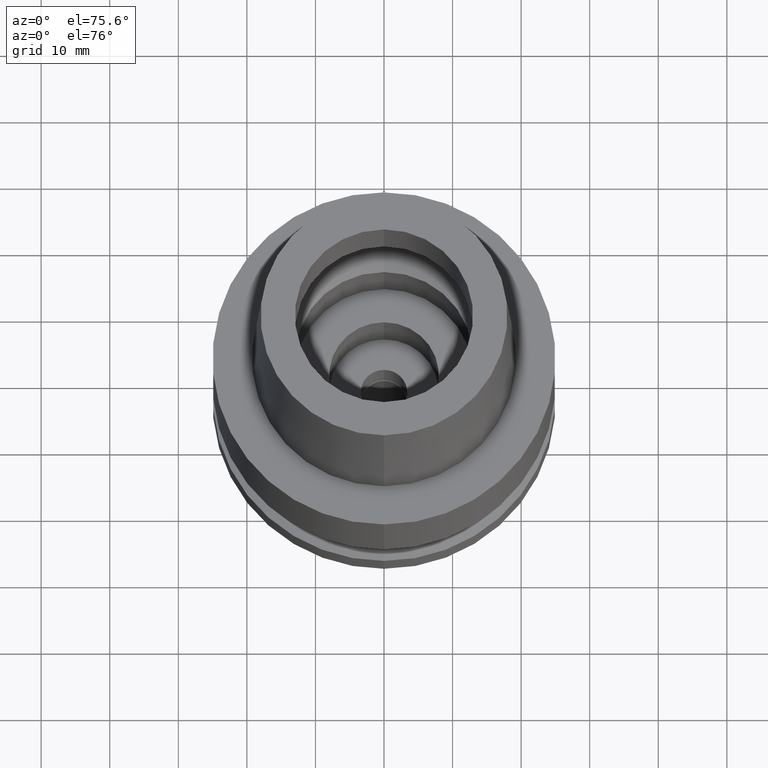
[diagram: clean part render]
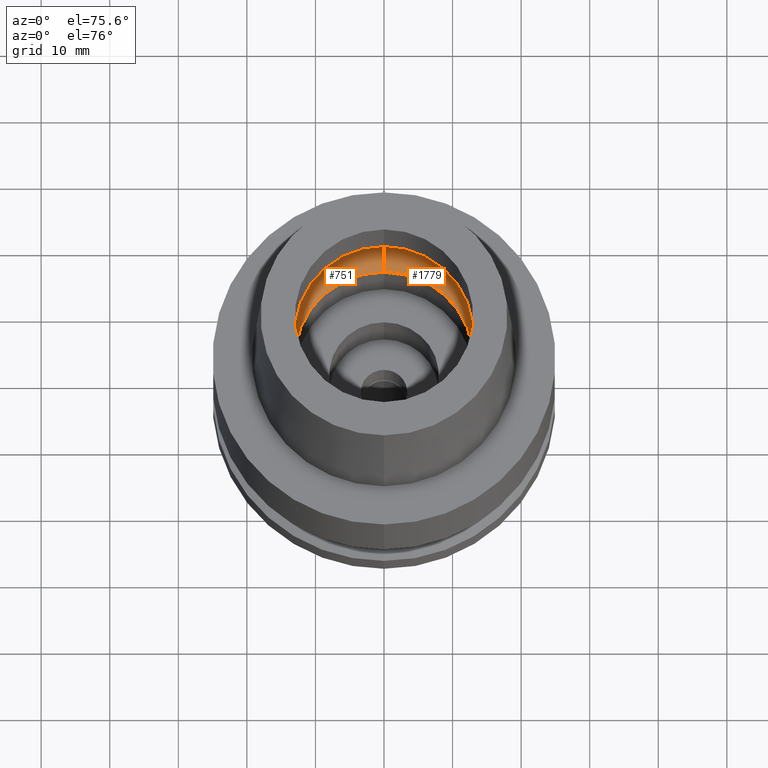
[diagram: same view with one multi-face feature highlighted, each face labeled with its STEP entity id]
A machine part, auxiliary view. The highlighted faces form ONE feature: a constant-radius fillet chain: 2 tangent blend faces with common blend radius 6 mm. The faces share edges in the B-rep.
Their STEP definitions:
[1] entity #751 (Torus):
#36 = CARTESIAN_POINT ( 'NONE',  ( 0.0000000000000000000, -16.00000000000000000, 5.245999999999999552 ) ) ;
#47 = DIRECTION ( 'NONE',  ( 0.0000000000000000000, 0.0000000000000000000, 1.000000000000000000 ) ) ;
#60 = DIRECTION ( 'NONE',  ( 0.0000000000000000000, -0.5000000000000169864, -0.8660254037844289376 ) ) ;
#87 = CARTESIAN_POINT ( 'NONE',  ( 0.0000000000000000000, -10.00000000000000000, 5.245999999999999552 ) ) ;
#114 = EDGE_LOOP ( 'NONE', ( #2272, #1970, #986, #553 ) ) ;
#196 = CIRCLE ( 'NONE', #805, 6.000000000000000000 ) ;
#271 = AXIS2_PLACEMENT_3D ( 'NONE', #2399, #1765, #1161 ) ;
#384 = VERTEX_POINT ( 'NONE', #2533 ) ;
#482 = AXIS2_PLACEMENT_3D ( 'NONE', #738, #2591, #1362 ) ;
#485 = CIRCLE ( 'NONE', #482, 6.000000000000000000 ) ;
#494 = EDGE_CURVE ( 'NONE', #795, #518, #1804, .T. ) ;
#518 = VERTEX_POINT ( 'NONE', #930 ) ;
#533 = EDGE_CURVE ( 'NONE', #932, #518, #485, .T. ) ;
#553 = ORIENTED_EDGE ( 'NONE', *, *, #533, .T. ) ;
#738 = CARTESIAN_POINT ( 'NONE',  ( 0.0000000000000000000, 10.00000000000000000, 5.245999999999999552 ) ) ;
#751 = ADVANCED_FACE ( 'NONE', ( #1314 ), #2656, .F. ) ;
#795 = VERTEX_POINT ( 'NONE', #36 ) ;
#805 = AXIS2_PLACEMENT_3D ( 'NONE', #87, #1759, #60 ) ;
#930 = CARTESIAN_POINT ( 'NONE',  ( 0.0000000000000000000, 16.00000000000000000, 5.245999999999999552 ) ) ;
#932 = VERTEX_POINT ( 'NONE', #987 ) ;
#986 = ORIENTED_EDGE ( 'NONE', *, *, #1185, .F. ) ;
#987 = CARTESIAN_POINT ( 'NONE',  ( 0.0000000000000000000, 13.00000000000000000, 0.04984757729336999899 ) ) ;
#1161 = DIRECTION ( 'NONE',  ( 0.0000000000000000000, -1.000000000000000000, 0.0000000000000000000 ) ) ;
#1185 = EDGE_CURVE ( 'NONE', #932, #384, #1370, .T. ) ;
#1314 = FACE_OUTER_BOUND ( 'NONE', #114, .T. ) ;
#1324 = CARTESIAN_POINT ( 'NONE',  ( 0.0000000000000000000, 0.0000000000000000000, 0.04984757729338000487 ) ) ;
#1362 = DIRECTION ( 'NONE',  ( 0.0000000000000000000, 0.5000000000000169864, -0.8660254037844289376 ) ) ;
#1370 = CIRCLE ( 'NONE', #1489, 13.00000000000000000 ) ;
#1489 = AXIS2_PLACEMENT_3D ( 'NONE', #1324, #2558, #2338 ) ;
#1759 = DIRECTION ( 'NONE',  ( -1.000000000000000000, 0.0000000000000000000, 0.0000000000000000000 ) ) ;
#1765 = DIRECTION ( 'NONE',  ( 0.0000000000000000000, 0.0000000000000000000, -1.000000000000000000 ) ) ;
#1804 = CIRCLE ( 'NONE', #271, 16.00000000000000000 ) ;
#1931 = AXIS2_PLACEMENT_3D ( 'NONE', #2145, #47, #2366 ) ;
#1970 = ORIENTED_EDGE ( 'NONE', *, *, #2187, .F. ) ;
#2145 = CARTESIAN_POINT ( 'NONE',  ( 0.0000000000000000000, 0.0000000000000000000, 5.245999999999999552 ) ) ;
#2187 = EDGE_CURVE ( 'NONE', #384, #795, #196, .T. ) ;
#2272 = ORIENTED_EDGE ( 'NONE', *, *, #494, .F. ) ;
#2338 = DIRECTION ( 'NONE',  ( 0.0000000000000000000, 1.000000000000000000, 0.0000000000000000000 ) ) ;
#2366 = DIRECTION ( 'NONE',  ( 0.0000000000000000000, 1.000000000000000000, 0.0000000000000000000 ) ) ;
#2399 = CARTESIAN_POINT ( 'NONE',  ( 0.0000000000000000000, 0.0000000000000000000, 5.245999999999999552 ) ) ;
#2533 = CARTESIAN_POINT ( 'NONE',  ( 0.0000000000000000000, -13.00000000000000000, 0.04984757729338000487 ) ) ;
#2558 = DIRECTION ( 'NONE',  ( 0.0000000000000000000, 0.0000000000000000000, 1.000000000000000000 ) ) ;
#2591 = DIRECTION ( 'NONE',  ( 1.000000000000000000, 0.0000000000000000000, 0.0000000000000000000 ) ) ;
#2656 = TOROIDAL_SURFACE ( 'NONE', #1931, 10.00000000000000000, 6.000000000000000000 ) ;
[2] entity #1779 (Torus):
#36 = CARTESIAN_POINT ( 'NONE',  ( 0.0000000000000000000, -16.00000000000000000, 5.245999999999999552 ) ) ;
#60 = DIRECTION ( 'NONE',  ( 0.0000000000000000000, -0.5000000000000169864, -0.8660254037844289376 ) ) ;
#87 = CARTESIAN_POINT ( 'NONE',  ( 0.0000000000000000000, -10.00000000000000000, 5.245999999999999552 ) ) ;
#175 = CARTESIAN_POINT ( 'NONE',  ( 0.0000000000000000000, 0.0000000000000000000, 0.04984757729338000487 ) ) ;
#196 = CIRCLE ( 'NONE', #805, 6.000000000000000000 ) ;
#222 = AXIS2_PLACEMENT_3D ( 'NONE', #1034, #1863, #827 ) ;
#384 = VERTEX_POINT ( 'NONE', #2533 ) ;
#394 = TOROIDAL_SURFACE ( 'NONE', #833, 10.00000000000000000, 6.000000000000000000 ) ;
#431 = EDGE_CURVE ( 'NONE', #518, #795, #1414, .T. ) ;
#482 = AXIS2_PLACEMENT_3D ( 'NONE', #738, #2591, #1362 ) ;
#485 = CIRCLE ( 'NONE', #482, 6.000000000000000000 ) ;
#518 = VERTEX_POINT ( 'NONE', #930 ) ;
#533 = EDGE_CURVE ( 'NONE', #932, #518, #485, .T. ) ;
#727 = ORIENTED_EDGE ( 'NONE', *, *, #533, .F. ) ;
#738 = CARTESIAN_POINT ( 'NONE',  ( 0.0000000000000000000, 10.00000000000000000, 5.245999999999999552 ) ) ;
#795 = VERTEX_POINT ( 'NONE', #36 ) ;
#805 = AXIS2_PLACEMENT_3D ( 'NONE', #87, #1759, #60 ) ;
#827 = DIRECTION ( 'NONE',  ( 0.0000000000000000000, 1.000000000000000000, 0.0000000000000000000 ) ) ;
#833 = AXIS2_PLACEMENT_3D ( 'NONE', #1038, #2692, #2513 ) ;
#930 = CARTESIAN_POINT ( 'NONE',  ( 0.0000000000000000000, 16.00000000000000000, 5.245999999999999552 ) ) ;
#932 = VERTEX_POINT ( 'NONE', #987 ) ;
#955 = EDGE_LOOP ( 'NONE', ( #1801, #1825, #1697, #727 ) ) ;
#987 = CARTESIAN_POINT ( 'NONE',  ( 0.0000000000000000000, 13.00000000000000000, 0.04984757729336999899 ) ) ;
#1034 = CARTESIAN_POINT ( 'NONE',  ( 0.0000000000000000000, 0.0000000000000000000, 5.245999999999999552 ) ) ;
#1038 = CARTESIAN_POINT ( 'NONE',  ( 0.0000000000000000000, 0.0000000000000000000, 5.245999999999999552 ) ) ;
#1076 = EDGE_CURVE ( 'NONE', #384, #932, #1714, .T. ) ;
#1118 = AXIS2_PLACEMENT_3D ( 'NONE', #175, #2464, #1245 ) ;
#1245 = DIRECTION ( 'NONE',  ( 0.0000000000000000000, -1.000000000000000000, 0.0000000000000000000 ) ) ;
#1362 = DIRECTION ( 'NONE',  ( 0.0000000000000000000, 0.5000000000000169864, -0.8660254037844289376 ) ) ;
#1414 = CIRCLE ( 'NONE', #222, 16.00000000000000000 ) ;
#1697 = ORIENTED_EDGE ( 'NONE', *, *, #431, .F. ) ;
#1714 = CIRCLE ( 'NONE', #1118, 13.00000000000000000 ) ;
#1759 = DIRECTION ( 'NONE',  ( -1.000000000000000000, 0.0000000000000000000, 0.0000000000000000000 ) ) ;
#1779 = ADVANCED_FACE ( 'NONE', ( #2241 ), #394, .F. ) ;
#1801 = ORIENTED_EDGE ( 'NONE', *, *, #1076, .F. ) ;
#1825 = ORIENTED_EDGE ( 'NONE', *, *, #2187, .T. ) ;
#1863 = DIRECTION ( 'NONE',  ( 0.0000000000000000000, 0.0000000000000000000, -1.000000000000000000 ) ) ;
#2187 = EDGE_CURVE ( 'NONE', #384, #795, #196, .T. ) ;
#2241 = FACE_OUTER_BOUND ( 'NONE', #955, .T. ) ;
#2464 = DIRECTION ( 'NONE',  ( 0.0000000000000000000, 0.0000000000000000000, 1.000000000000000000 ) ) ;
#2513 = DIRECTION ( 'NONE',  ( 0.0000000000000000000, 1.000000000000000000, 0.0000000000000000000 ) ) ;
#2533 = CARTESIAN_POINT ( 'NONE',  ( 0.0000000000000000000, -13.00000000000000000, 0.04984757729338000487 ) ) ;
#2591 = DIRECTION ( 'NONE',  ( 1.000000000000000000, 0.0000000000000000000, 0.0000000000000000000 ) ) ;
#2692 = DIRECTION ( 'NONE',  ( 0.0000000000000000000, 0.0000000000000000000, 1.000000000000000000 ) ) ;